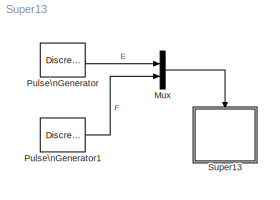
MODEL Super13
KIND model
BLOCK [Mux] Mux
  DisplayOption = bar
  Inputs = 2
  Ports = [2, 1]
BLOCK [DiscretePulseGenerator] Pulse\nGenerator
  Ports = [0, 1]
BLOCK [DiscretePulseGenerator] Pulse\nGenerator1
  Period = 4
  Ports = [0, 1]
  PulseWidth = 2
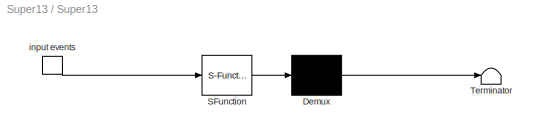
BLOCK [SubSystem] Super13
  MaskDescription = Stateflow diagram
  MaskDisplay = plot(sf('Private','sfblk','xIcon'),sf('Private','sfblk','yIcon'));text(0.5,0,sf('Private', 'sfblk', 'tIcon'),'HorizontalAl','Center','VerticalAl','Bottom');
  MaskIconFrame = off
  MaskIconOpaque = off
  MaskIconRotate = none
  MaskIconUnits = autoscale
  MaskSelfModifiable = on
  MaskType = Stateflow
  MinAlgLoopOccurrences = off
  Ports = [0, 0, 0, 1]
  RTWSystemCode = Auto
  TreatAsAtomicUnit = off
BLOCK [Demux] Super13/ Demux 
  Outputs = 1
  Ports = [1, 1]
BLOCK [S-Function] Super13/ SFunction 
  FunctionName = sf_sfun
  PortCounts = [1 1]
  Ports = [1, 1]
  Tag = Stateflow S-Function Super13 1
BLOCK [Terminator] Super13/ Terminator 
BLOCK [TriggerPort] Super13/ input events 
  Ports = [0, 1]
  ShowOutputPort = on
  TriggerType = either
LINE Mux:1 -> Super13:trigger
LINE Pulse\nGenerator1:1 -> Mux:2
LINE Pulse\nGenerator:1 -> Mux:1
LINE Super13/ Demux :1 -> Super13/ Terminator :1
LINE Super13/ SFunction :1 -> Super13/ Demux :1
LINE Super13/ input events :1 -> Super13/ SFunction :1
CHART Super13 states=4 transitions=5
  STATE_LABEL 'A'
  STATE_LABEL 'A1'
  STATE_LABEL 'C'
  STATE_LABEL 'B'
